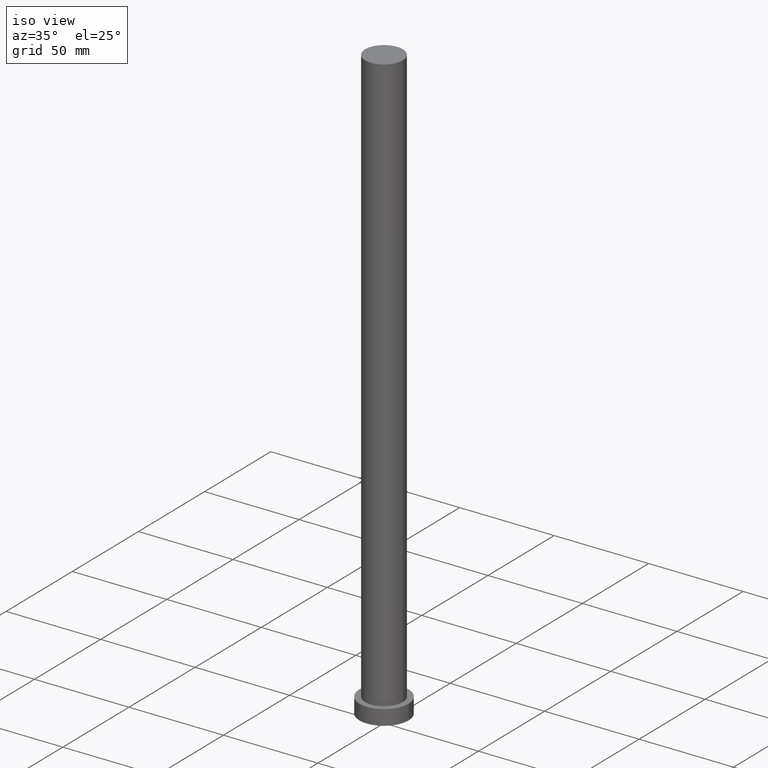
[diagram: clean part render]
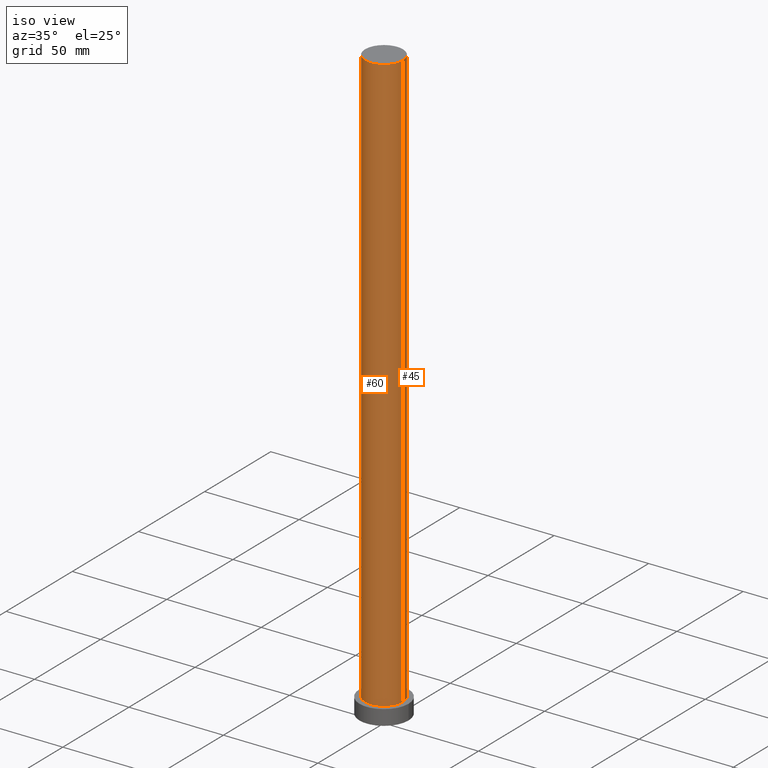
[diagram: same view with one multi-face feature highlighted, each face labeled with its STEP entity id]
A machine part, iso view. The highlighted faces form ONE feature: a constant-radius fillet chain: 2 tangent blend faces with common blend radius 10 mm. The faces share edges in the B-rep.
Their STEP definitions:
[1] entity #60 (Cylinder):
#1 = CARTESIAN_POINT ( 'NONE',  ( -10.00000000000000000, 0.000000000000000000, 315.0000000000000000 ) ) ;
#2 = DIRECTION ( 'NONE',  ( -0.000000000000000000, -0.000000000000000000, -1.000000000000000000 ) ) ;
#4 = ORIENTED_EDGE ( 'NONE', *, *, #205, .F. ) ;
#5 = CYLINDRICAL_SURFACE ( 'NONE', #192, 10.00000000000000000 ) ;
#6 = DIRECTION ( 'NONE',  ( 0.000000000000000000, 0.000000000000000000, 1.000000000000000000 ) ) ;
#16 = CARTESIAN_POINT ( 'NONE',  ( 10.00000000000000000, 1.224646799147353256E-15, 8.000000000000000000 ) ) ;
#20 = CARTESIAN_POINT ( 'NONE',  ( 0.000000000000000000, 0.000000000000000000, 8.000000000000000000 ) ) ;
#32 = EDGE_CURVE ( 'NONE', #189, #156, #184, .T. ) ;
#40 = CARTESIAN_POINT ( 'NONE',  ( 0.000000000000000000, 0.000000000000000000, 315.0000000000000000 ) ) ;
#41 = DIRECTION ( 'NONE',  ( -0.000000000000000000, -0.000000000000000000, -1.000000000000000000 ) ) ;
#42 = CARTESIAN_POINT ( 'NONE',  ( -10.00000000000000000, 0.000000000000000000, 315.0000000000000000 ) ) ;
#44 = EDGE_LOOP ( 'NONE', ( #4, #200, #178, #252 ) ) ;
#52 = VECTOR ( 'NONE', #2, 1000.000000000000000 ) ;
#60 = ADVANCED_FACE ( 'NONE', ( #123 ), #5, .T. ) ;
#62 = EDGE_CURVE ( 'NONE', #216, #241, #208, .T. ) ;
#76 = CARTESIAN_POINT ( 'NONE',  ( -10.00000000000000000, 0.000000000000000000, 8.000000000000000000 ) ) ;
#82 = DIRECTION ( 'NONE',  ( 1.000000000000000000, 0.000000000000000000, 0.000000000000000000 ) ) ;
#83 = LINE ( 'NONE', #42, #116 ) ;
#96 = DIRECTION ( 'NONE',  ( 0.000000000000000000, 0.000000000000000000, 1.000000000000000000 ) ) ;
#100 = DIRECTION ( 'NONE',  ( 1.000000000000000000, 0.000000000000000000, 0.000000000000000000 ) ) ;
#103 = LINE ( 'NONE', #177, #52 ) ;
#114 = AXIS2_PLACEMENT_3D ( 'NONE', #126, #6, #82 ) ;
#116 = VECTOR ( 'NONE', #242, 1000.000000000000000 ) ;
#123 = FACE_OUTER_BOUND ( 'NONE', #44, .T. ) ;
#126 = CARTESIAN_POINT ( 'NONE',  ( 0.000000000000000000, 0.000000000000000000, 315.0000000000000000 ) ) ;
#146 = EDGE_CURVE ( 'NONE', #189, #216, #83, .T. ) ;
#156 = VERTEX_POINT ( 'NONE', #244 ) ;
#177 = CARTESIAN_POINT ( 'NONE',  ( 10.00000000000000000, 1.224646799147353256E-15, 315.0000000000000000 ) ) ;
#178 = ORIENTED_EDGE ( 'NONE', *, *, #146, .T. ) ;
#179 = DIRECTION ( 'NONE',  ( -1.000000000000000000, 0.000000000000000000, 0.000000000000000000 ) ) ;
#184 = CIRCLE ( 'NONE', #114, 10.00000000000000000 ) ;
#189 = VERTEX_POINT ( 'NONE', #1 ) ;
#192 = AXIS2_PLACEMENT_3D ( 'NONE', #40, #41, #179 ) ;
#199 = AXIS2_PLACEMENT_3D ( 'NONE', #20, #96, #100 ) ;
#200 = ORIENTED_EDGE ( 'NONE', *, *, #32, .F. ) ;
#205 = EDGE_CURVE ( 'NONE', #156, #241, #103, .T. ) ;
#208 = CIRCLE ( 'NONE', #199, 10.00000000000000000 ) ;
#216 = VERTEX_POINT ( 'NONE', #76 ) ;
#241 = VERTEX_POINT ( 'NONE', #16 ) ;
#242 = DIRECTION ( 'NONE',  ( -0.000000000000000000, -0.000000000000000000, -1.000000000000000000 ) ) ;
#244 = CARTESIAN_POINT ( 'NONE',  ( 10.00000000000000000, 1.224646799147353256E-15, 315.0000000000000000 ) ) ;
#252 = ORIENTED_EDGE ( 'NONE', *, *, #62, .T. ) ;
[2] entity #45 (Cylinder):
#1 = CARTESIAN_POINT ( 'NONE',  ( -10.00000000000000000, 0.000000000000000000, 315.0000000000000000 ) ) ;
#2 = DIRECTION ( 'NONE',  ( -0.000000000000000000, -0.000000000000000000, -1.000000000000000000 ) ) ;
#16 = CARTESIAN_POINT ( 'NONE',  ( 10.00000000000000000, 1.224646799147353256E-15, 8.000000000000000000 ) ) ;
#17 = ORIENTED_EDGE ( 'NONE', *, *, #146, .F. ) ;
#21 = DIRECTION ( 'NONE',  ( -1.000000000000000000, 0.000000000000000000, 0.000000000000000000 ) ) ;
#35 = EDGE_LOOP ( 'NONE', ( #206, #46, #247, #17 ) ) ;
#39 = CYLINDRICAL_SURFACE ( 'NONE', #166, 10.00000000000000000 ) ;
#42 = CARTESIAN_POINT ( 'NONE',  ( -10.00000000000000000, 0.000000000000000000, 315.0000000000000000 ) ) ;
#45 = ADVANCED_FACE ( 'NONE', ( #214 ), #39, .T. ) ;
#46 = ORIENTED_EDGE ( 'NONE', *, *, #205, .T. ) ;
#52 = VECTOR ( 'NONE', #2, 1000.000000000000000 ) ;
#76 = CARTESIAN_POINT ( 'NONE',  ( -10.00000000000000000, 0.000000000000000000, 8.000000000000000000 ) ) ;
#78 = CARTESIAN_POINT ( 'NONE',  ( 0.000000000000000000, 0.000000000000000000, 315.0000000000000000 ) ) ;
#83 = LINE ( 'NONE', #42, #116 ) ;
#99 = EDGE_CURVE ( 'NONE', #156, #189, #240, .T. ) ;
#103 = LINE ( 'NONE', #177, #52 ) ;
#116 = VECTOR ( 'NONE', #242, 1000.000000000000000 ) ;
#121 = DIRECTION ( 'NONE',  ( 1.000000000000000000, 0.000000000000000000, 0.000000000000000000 ) ) ;
#127 = DIRECTION ( 'NONE',  ( 0.000000000000000000, 0.000000000000000000, 1.000000000000000000 ) ) ;
#146 = EDGE_CURVE ( 'NONE', #189, #216, #83, .T. ) ;
#150 = AXIS2_PLACEMENT_3D ( 'NONE', #78, #127, #121 ) ;
#156 = VERTEX_POINT ( 'NONE', #244 ) ;
#161 = DIRECTION ( 'NONE',  ( 0.000000000000000000, 0.000000000000000000, 1.000000000000000000 ) ) ;
#166 = AXIS2_PLACEMENT_3D ( 'NONE', #175, #194, #21 ) ;
#175 = CARTESIAN_POINT ( 'NONE',  ( 0.000000000000000000, 0.000000000000000000, 315.0000000000000000 ) ) ;
#176 = DIRECTION ( 'NONE',  ( 1.000000000000000000, 0.000000000000000000, 0.000000000000000000 ) ) ;
#177 = CARTESIAN_POINT ( 'NONE',  ( 10.00000000000000000, 1.224646799147353256E-15, 315.0000000000000000 ) ) ;
#183 = EDGE_CURVE ( 'NONE', #241, #216, #226, .T. ) ;
#189 = VERTEX_POINT ( 'NONE', #1 ) ;
#191 = CARTESIAN_POINT ( 'NONE',  ( 0.000000000000000000, 0.000000000000000000, 8.000000000000000000 ) ) ;
#194 = DIRECTION ( 'NONE',  ( -0.000000000000000000, -0.000000000000000000, -1.000000000000000000 ) ) ;
#205 = EDGE_CURVE ( 'NONE', #156, #241, #103, .T. ) ;
#206 = ORIENTED_EDGE ( 'NONE', *, *, #99, .F. ) ;
#214 = FACE_OUTER_BOUND ( 'NONE', #35, .T. ) ;
#216 = VERTEX_POINT ( 'NONE', #76 ) ;
#226 = CIRCLE ( 'NONE', #254, 10.00000000000000000 ) ;
#240 = CIRCLE ( 'NONE', #150, 10.00000000000000000 ) ;
#241 = VERTEX_POINT ( 'NONE', #16 ) ;
#242 = DIRECTION ( 'NONE',  ( -0.000000000000000000, -0.000000000000000000, -1.000000000000000000 ) ) ;
#244 = CARTESIAN_POINT ( 'NONE',  ( 10.00000000000000000, 1.224646799147353256E-15, 315.0000000000000000 ) ) ;
#247 = ORIENTED_EDGE ( 'NONE', *, *, #183, .T. ) ;
#254 = AXIS2_PLACEMENT_3D ( 'NONE', #191, #161, #176 ) ;